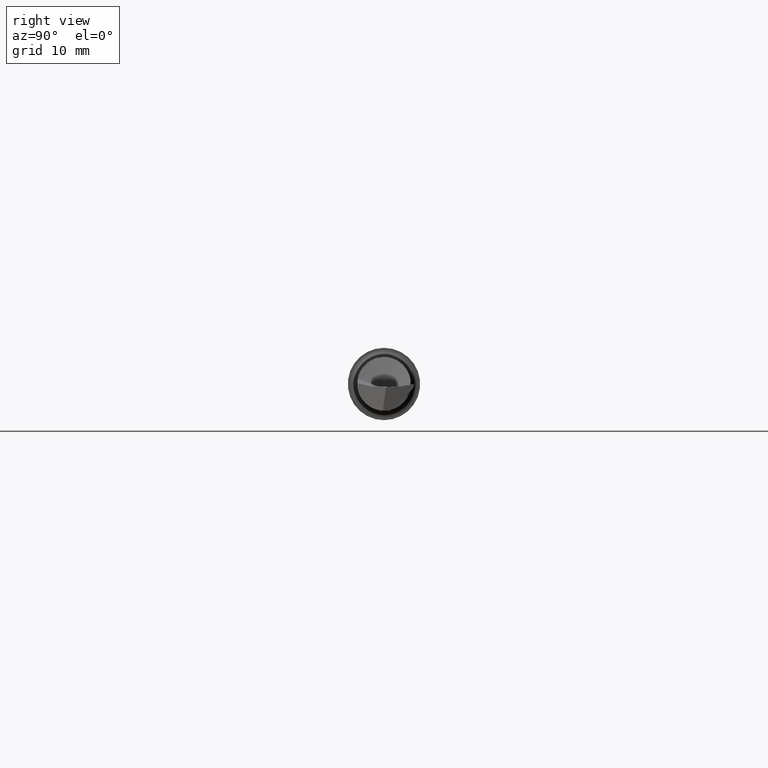
[diagram: clean part render]
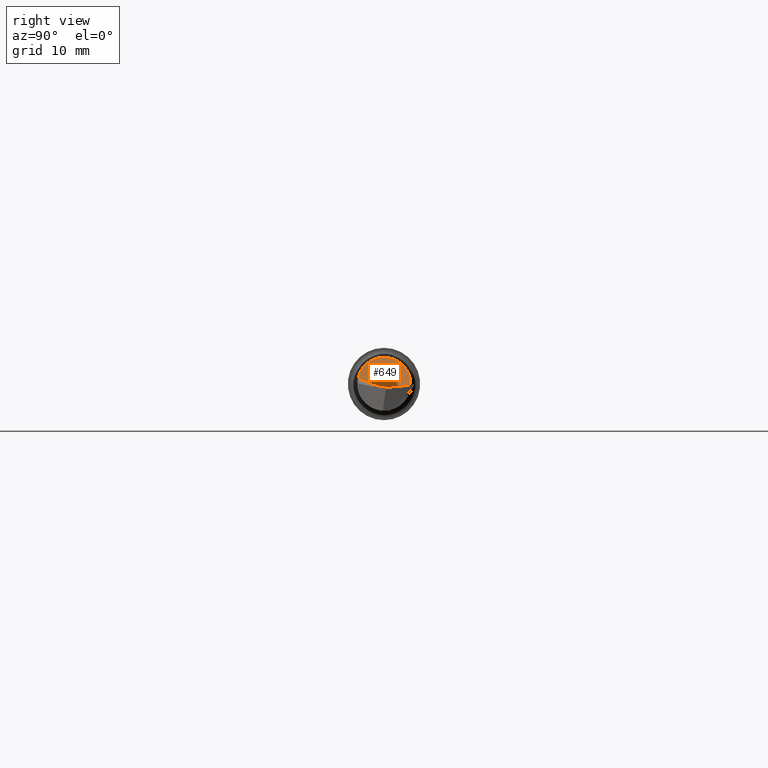
[diagram: same view with one face highlighted and labeled with its STEP entity id]
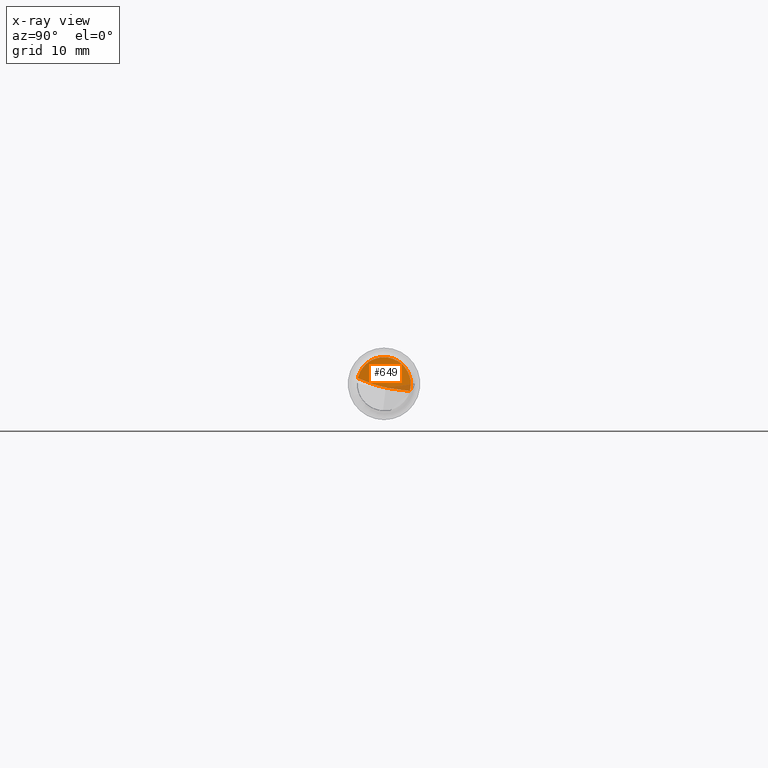
[diagram: x-ray of the same camera — body ghosted, the highlighted face saturated]
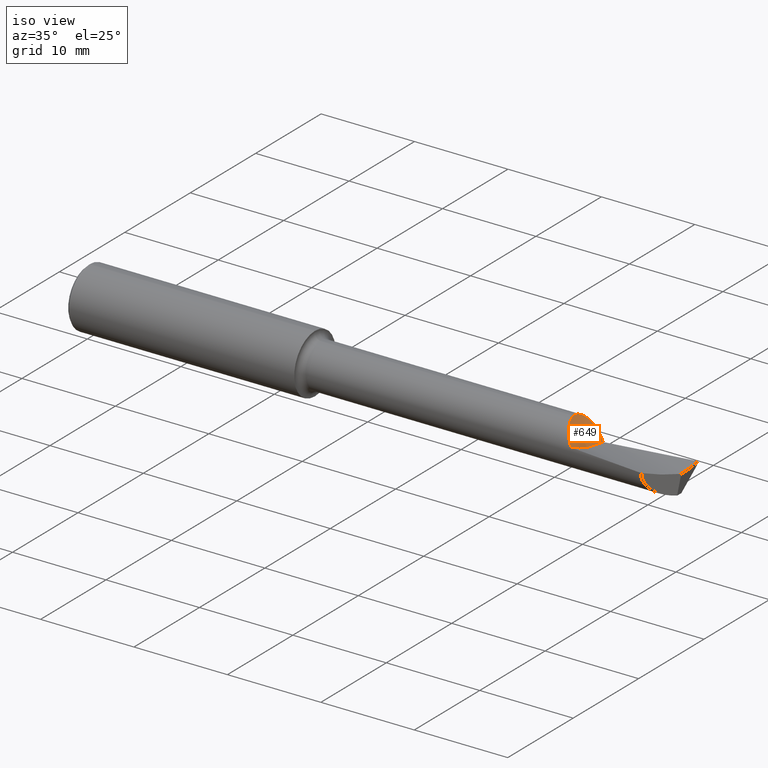
[diagram: same view with one face highlighted and labeled with its STEP entity id]
A machine part, right view. The second image highlights one B-rep face of the part: STEP entity #649.
The next image is the same camera in x-ray: the body ghosted, the highlighted face saturated — about 7% of this face is hidden behind the body in this view.
A second angle (iso view) of the same face is appended — the face is thin or edge-on in the first view.
In plain terms, the highlighted face is a freeform B-spline surface patch.
Its self-contained STEP definition (entity closure, byte-faithful):
#1 = CARTESIAN_POINT ( 'NONE',  ( 2.047827916880122334, 0.0005448074884509098359, 0.09249879614009953732 ) ) ;
#7 = CARTESIAN_POINT ( 'NONE',  ( 2.073468108956049605, 0.08550618690932580701, 0.03552333859736302862 ) ) ;
#14 = CARTESIAN_POINT ( 'NONE',  ( 2.066208213237176849, -0.05356572789672628399, 0.07541362391561999556 ) ) ;
#16 = CARTESIAN_POINT ( 'NONE',  ( 2.076286271816419227, 0.08730198741611246149, 0.03105794626334639624 ) ) ;
#21 = CARTESIAN_POINT ( 'NONE',  ( 2.064632393218944539, -0.05062565620870608518, 0.07748382293347118310 ) ) ;
#25 = CARTESIAN_POINT ( 'NONE',  ( 2.054472730122976376, 0.06293394240340167978, 0.06779179277510309631 ) ) ;
#56 = CARTESIAN_POINT ( 'NONE',  ( 2.099469566383024066, -0.09876474483481932631, 0.02439576420680025434 ) ) ;
#58 = EDGE_CURVE ( 'NONE', #183, #342, #763, .T. ) ;
#76 = CARTESIAN_POINT ( 'NONE',  ( 2.070390417637880009, 0.08316591038031106997, 0.04049630990281855025 ) ) ;
#78 = CARTESIAN_POINT ( 'NONE',  ( 2.092374781392565275, -0.08702720584656421787, 0.03461678013650090063 ) ) ;
#83 = CARTESIAN_POINT ( 'NONE',  ( 2.101985182368761418, -0.06232069977107370512, 0.007196703789060768588 ) ) ;
#95 = CARTESIAN_POINT ( 'NONE',  ( 2.046359999999999957, 0.01283752039381836144, 0.09160484741616187199 ) ) ;
#110 = CARTESIAN_POINT ( 'NONE',  ( 2.103692732370841867, -0.03694737321389097301, -0.006241681281368437889 ) ) ;
#111 = EDGE_CURVE ( 'NONE', #321, #366, #199, .T. ) ;
#117 = FACE_OUTER_BOUND ( 'NONE', #437, .T. ) ;
#126 = CARTESIAN_POINT ( 'NONE',  ( 2.066627336287861105, -0.05433633409741091269, 0.07485885989433642418 ) ) ;
#130 = CARTESIAN_POINT ( 'NONE',  ( 2.056689114071337254, 0.06734694849162307928, 0.06362724162322348775 ) ) ;
#133 = CARTESIAN_POINT ( 'NONE',  ( 2.050684075178326626, 0.05377232911390823766, 0.07533086458502093186 ) ) ;
#147 = CARTESIAN_POINT ( 'NONE',  ( 2.110129382589837288, 0.08982576072408679502, -0.02222601275359146686 ) ) ;
#153 = CARTESIAN_POINT ( 'NONE',  ( 2.083067939091489684, 0.09028758523319836693, 0.02034379597425600358 ) ) ;
#154 = CARTESIAN_POINT ( 'NONE',  ( 2.107791904823271611, 0.02744776930478221716, -0.01842625771583338706 ) ) ;
#166 = CARTESIAN_POINT ( 'NONE',  ( 2.046359999999997292, -0.004657400960956949339, 0.09279469704556622678 ) ) ;
#168 = CARTESIAN_POINT ( 'NONE',  ( 2.047909686212890712, -1.554536630872900275E-06, 0.09251412615423500185 ) ) ;
#171 = CARTESIAN_POINT ( 'NONE',  ( 2.046359999999999957, 0.03186954430192543569, 0.08683652541406530756 ) ) ;
#173 = CARTESIAN_POINT ( 'NONE',  ( 2.059668613704616735, -0.04013664932119041795, 0.08354322363455583822 ) ) ;
#174 = CARTESIAN_POINT ( 'NONE',  ( 2.046359999999999513, 0.05068553317297123939, 0.07904524283450664601 ) ) ;
#176 = CARTESIAN_POINT ( 'NONE',  ( 2.066937143561800028, 0.08018521494668531813, 0.04613968370157726928 ) ) ;
#183 = VERTEX_POINT ( 'NONE', #771 ) ;
#187 = CARTESIAN_POINT ( 'NONE',  ( 2.052825325469445961, 0.05937367452498090031, 0.07096069019223755214 ) ) ;
#192 = CARTESIAN_POINT ( 'NONE',  ( 2.099985204774059699, -0.09024474448373197288, 0.02030113526544596175 ) ) ;
#199 = B_SPLINE_CURVE_WITH_KNOTS ( 'NONE', 3,
 ( #168, #595, #1, #646, #299, #762, #477, #233, #544 ),
 .UNSPECIFIED., .F., .F.,
 ( 4, 2, 1, 1, 1, 4 ),
 ( 0.9130828784941764642, 0.9185151985882901160, 0.9239475186824037678, 0.9348121588706318486, 0.9565414392470881211, 1.000000000000000000 ),
 .UNSPECIFIED. ) ;
#218 = CARTESIAN_POINT ( 'NONE',  ( 2.085945122272987007, 0.09115187329204574307, 0.01580990246085937218 ) ) ;
#233 = CARTESIAN_POINT ( 'NONE',  ( 2.046522920783742983, 0.01074722021861904304, 0.09189779192344127434 ) ) ;
#234 = CARTESIAN_POINT ( 'NONE',  ( 2.108259403541731025, 0.03322201083773395486, -0.02366986548610450214 ) ) ;
#239 = CARTESIAN_POINT ( 'NONE',  ( 2.063224009766619460, -0.04778499748353275817, 0.07925519998079103012 ) ) ;
#244 = CARTESIAN_POINT ( 'NONE',  ( 2.081277077143194543, 0.08959285356399214473, 0.02317037652879311987 ) ) ;
#249 = CARTESIAN_POINT ( 'NONE',  ( 2.046835084042316399, 0.03761252682148737841, 0.08472884904255002791 ) ) ;
#250 = CARTESIAN_POINT ( 'NONE',  ( 2.052056960218470838, -0.01946374552352209131, 0.09108352192149239690 ) ) ;
#252 = EDGE_CURVE ( 'NONE', #342, #321, #597, .T. ) ;
#254 = VERTEX_POINT ( 'NONE', #496 ) ;
#256 = CARTESIAN_POINT ( 'NONE',  ( 2.049452892340594357, -0.009316029406795841780, 0.09249996228234917683 ) ) ;
#259 = CARTESIAN_POINT ( 'NONE',  ( 2.063118217034376922, 0.07621158154040955091, 0.05250172275426923801 ) ) ;
#264 = CARTESIAN_POINT ( 'NONE',  ( 2.107649412634559294, 0.09082427280002687564, -0.01835262024604034786 ) ) ;
#293 = CARTESIAN_POINT ( 'NONE',  ( 2.046359999999999069, 0.02548420369320165274, 0.08827803738801967559 ) ) ;
#299 = CARTESIAN_POINT ( 'NONE',  ( 2.047613336586801225, 0.001904979390057215047, 0.09248317671571612553 ) ) ;
#307 = CARTESIAN_POINT ( 'NONE',  ( 2.047909686212890712, -1.554536630872900275E-06, 0.09251412615423500185 ) ) ;
#315 = CARTESIAN_POINT ( 'NONE',  ( 2.047909686212890712, -1.554536630872900275E-06, 0.09251412615423500185 ) ) ;
#321 = VERTEX_POINT ( 'NONE', #315 ) ;
#323 = CARTESIAN_POINT ( 'NONE',  ( 2.052082497096775704, 0.05752794145831838235, 0.07245187427481500353 ) ) ;
#326 = CARTESIAN_POINT ( 'NONE',  ( 2.099985204774059699, -0.09024474448373197288, 0.02030113526544596175 ) ) ;
#327 = CARTESIAN_POINT ( 'NONE',  ( 2.090581533027239036, 0.09210676330602081407, 0.008522862028076474278 ) ) ;
#332 = EDGE_CURVE ( 'NONE', #254, #183, #498, .T. ) ;
#342 = VERTEX_POINT ( 'NONE', #394 ) ;
#362 = CARTESIAN_POINT ( 'NONE',  ( 2.046359999999999069, 0.01913645612721456488, 0.08986829457070735772 ) ) ;
#366 = VERTEX_POINT ( 'NONE', #95 ) ;
#368 = CARTESIAN_POINT ( 'NONE',  ( 2.066732102188527431, -0.05452740403586507634, 0.07471960758305627726 ) ) ;
#378 = B_SPLINE_CURVE_WITH_KNOTS ( 'NONE', 3,
 ( #171, #293, #362, #537 ),
 .UNSPECIFIED., .F., .F.,
 ( 4, 4 ),
 ( 0.000000000000000000, 1.000000000000000000 ),
 .UNSPECIFIED. ) ;
#379 = CARTESIAN_POINT ( 'NONE',  ( 2.068150813712690717, 0.08131382946355224239, 0.04414186749009448019 ) ) ;
#380 = CARTESIAN_POINT ( 'NONE',  ( 2.085890238348702574, -0.08094550312319337415, 0.04598559725705914092 ) ) ;
#383 = CARTESIAN_POINT ( 'NONE',  ( 2.071197751350748018, -0.06224497473912510986, 0.06871714438118392554 ) ) ;
#387 = CARTESIAN_POINT ( 'NONE',  ( 2.103920395128665799, -0.03289320846274075560, -0.003308102619573082773 ) ) ;
#394 = CARTESIAN_POINT ( 'NONE',  ( 2.099985204774059699, -0.09024474448373197288, 0.02030113526544596175 ) ) ;
#404 = CARTESIAN_POINT ( 'NONE',  ( 2.086935998376662216, 0.09141023289801472607, 0.01424971767703395870 ) ) ;
#425 = CARTESIAN_POINT ( 'NONE',  ( 2.112521805327296498, 0.1031277890515530093, -0.02518047411719523052 ) ) ;
#428 = CARTESIAN_POINT ( 'NONE',  ( 2.046359999999999513, 0.1059440200732878062, 0.07762243902522676653 ) ) ;
#432 = CARTESIAN_POINT ( 'NONE',  ( 2.059019005238191813, 0.07106157771718758787, 0.05949828892136887343 ) ) ;
#437 = EDGE_LOOP ( 'NONE', ( #583, #618, #629, #744, #535 ) ) ;
#443 = CARTESIAN_POINT ( 'NONE',  ( 2.067919854101653687, -0.05664095340334787676, 0.07313467737845072425 ) ) ;
#459 = CARTESIAN_POINT ( 'NONE',  ( 2.089248984098266870, 0.09189570065554275580, 0.01061359712825269905 ) ) ;
#461 = CARTESIAN_POINT ( 'NONE',  ( 2.096433888643092214, 0.09287403088557119601, -0.0006477885304175681020 ) ) ;
#463 = CARTESIAN_POINT ( 'NONE',  ( 2.111665809954994089, 0.08915496014083668097, -0.02465041748704996025 ) ) ;
#477 = CARTESIAN_POINT ( 'NONE',  ( 2.046834931757196774, 0.007569663407491452820, 0.09223360116256829055 ) ) ;
#495 = CARTESIAN_POINT ( 'NONE',  ( 2.049868107001878936, 0.05118305480786037448, 0.07711223675426005786 ) ) ;
#496 = CARTESIAN_POINT ( 'NONE',  ( 2.046359999999999957, 0.03186954430192543569, 0.08683652541406530756 ) ) ;
#498 = B_SPLINE_CURVE_WITH_KNOTS ( 'NONE', 3,
 ( #562, #249, #679, #495, #133, #323, #187, #730, #568, #25, #675, #130, #432, #259, #504, #176, #379, #617, #76, #558, #667, #551, #7, #16, #244, #153, #218, #404, #526, #459, #515, #327, #642, #586, #461, #748, #264, #147, #580 ),
 .UNSPECIFIED., .F., .F.,
 ( 4, 2, 2, 1, 1, 2, 2, 2, 2, 1, 1, 1, 2, 2, 2, 2, 2, 1, 1, 2, 2, 2, 4 ),
 ( 0.000000000000000000, 0.1249999999999653888, 0.1874999999999475142, 0.2187499999999386324, 0.2343749999999341360, 0.2421874999999318878, 0.2499999999999296396, 0.3749999999998804290, 0.4374999999998557820, 0.4687499999998435141, 0.4843749999998374078, 0.4921874999998332445, 0.4960937499998323008, 0.4999999999998314126, 0.6249999999998410161, 0.6874999999998472333, 0.7187499999998503419, 0.7343749999998518962, 0.7421874999998526734, 0.7460937499998541167, 0.7499999999998555600, 0.8749999999999278355, 1.000000000000000000 ),
 .UNSPECIFIED. ) ;
#504 = CARTESIAN_POINT ( 'NONE',  ( 2.064585350140756059, 0.07785742368321742213, 0.05003626694631448796 ) ) ;
#515 = CARTESIAN_POINT ( 'NONE',  ( 2.090178636555234171, 0.09204756222701837576, 0.009154675718668237039 ) ) ;
#526 = CARTESIAN_POINT ( 'NONE',  ( 2.088470035096937849, 0.09174301055325211063, 0.01183760101169105926 ) ) ;
#535 = ORIENTED_EDGE ( 'NONE', *, *, #111, .F. ) ;
#537 = CARTESIAN_POINT ( 'NONE',  ( 2.046359999999999957, 0.01283752039381836144, 0.09160484741616187199 ) ) ;
#544 = CARTESIAN_POINT ( 'NONE',  ( 2.046359999999999957, 0.01283752039381836144, 0.09160484741616187199 ) ) ;
#551 = CARTESIAN_POINT ( 'NONE',  ( 2.071086826718692375, 0.08370366893413648535, 0.03936956152814576754 ) ) ;
#556 = CARTESIAN_POINT ( 'NONE',  ( 2.057565407188880702, -0.03494212542111562597, 0.08581955901723035962 ) ) ;
#558 = CARTESIAN_POINT ( 'NONE',  ( 2.070718623995844165, 0.08342116242586343489, 0.03996496425778538891 ) ) ;
#562 = CARTESIAN_POINT ( 'NONE',  ( 2.046359999999999957, 0.03186954430192543569, 0.08683652541406530756 ) ) ;
#568 = CARTESIAN_POINT ( 'NONE',  ( 2.054188772820882747, 0.06234848831482234927, 0.06833062475167092642 ) ) ;
#580 = CARTESIAN_POINT ( 'NONE',  ( 2.111665809954994089, 0.08915496014083668097, -0.02465041748704996025 ) ) ;
#583 = ORIENTED_EDGE ( 'NONE', *, *, #252, .F. ) ;
#586 = CARTESIAN_POINT ( 'NONE',  ( 2.090956218076420292, 0.09215935361655598623, 0.007935468564174451289 ) ) ;
#595 = CARTESIAN_POINT ( 'NONE',  ( 2.047880505145097452, 0.0002213167310058151180, 0.09250000089681748028 ) ) ;
#597 = B_SPLINE_CURVE_WITH_KNOTS ( 'NONE', 3,
 ( #192, #78, #380, #673, #383, #443, #680, #614, #368, #126, #718, #14, #21, #239, #173, #556, #250, #256, #307 ),
 .UNSPECIFIED., .F., .F.,
 ( 4, 2, 2, 1, 2, 2, 1, 1, 2, 2, 4 ),
 ( 0.000000000000000000, 0.2282707196234658453, 0.4565414392469316907, 0.4850752791998617641, 0.4993421991763267731, 0.5029089291704452735, 0.5064756591645637185, 0.5136091191528026068, 0.5706767990587137129, 0.6848121588705340379, 0.9130828784941764642 ),
 .UNSPECIFIED. ) ;
#598 = EDGE_CURVE ( 'NONE', #254, #366, #378, .T. ) ;
#603 = CARTESIAN_POINT ( 'NONE',  ( 2.046359999999999957, -0.05362023393611898420, 0.1168180843722870094 ) ) ;
#614 = CARTESIAN_POINT ( 'NONE',  ( 2.066924862295450360, -0.05487806547671787716, 0.07446320367560997633 ) ) ;
#617 = CARTESIAN_POINT ( 'NONE',  ( 2.069632865742709438, 0.08256084544845203321, 0.04172559821949120562 ) ) ;
#618 = ORIENTED_EDGE ( 'NONE', *, *, #58, .F. ) ;
#629 = ORIENTED_EDGE ( 'NONE', *, *, #332, .F. ) ;
#642 = CARTESIAN_POINT ( 'NONE',  ( 2.090851124895340973, 0.09214489540535990286, 0.008100202133049067346 ) ) ;
#646 = CARTESIAN_POINT ( 'NONE',  ( 2.047741136250033733, 0.001089221985225309781, 0.09249398736152562861 ) ) ;
#649 = ADVANCED_FACE ( 'NONE', ( #117 ), #705, .T. ) ;
#667 = CARTESIAN_POINT ( 'NONE',  ( 2.070938215181162168, 0.08359041568984150461, 0.03960973508378786562 ) ) ;
#673 = CARTESIAN_POINT ( 'NONE',  ( 2.075301723327794168, -0.06855649903352785401, 0.06298298239382797703 ) ) ;
#675 = CARTESIAN_POINT ( 'NONE',  ( 2.054641703697401400, 0.06327518632099957130, 0.06747302676158670187 ) ) ;
#679 = CARTESIAN_POINT ( 'NONE',  ( 2.047769141780094948, 0.04320709663551680624, 0.08202685796229856885 ) ) ;
#680 = CARTESIAN_POINT ( 'NONE',  ( 2.067401435210660221, -0.05573592228519051034, 0.07382865587468590007 ) ) ;
#699 = CARTESIAN_POINT ( 'NONE',  ( 2.109728201757892663, 0.05835192853738419699, -0.02303726912454244491 ) ) ;
#705 = B_SPLINE_SURFACE_WITH_KNOTS ( 'NONE', 1, 3, ( 
 ( #603, #166, #174, #428 ),
 ( #56, #110, #234, #425 ) ),
 .UNSPECIFIED., .F., .F., .F.,
 ( 2, 2 ),
 ( 4, 4 ),
 ( 0.000000000000000000, 1.000000000000000000 ),
 ( 0.01153228999222987577, 0.01577103337950940334 ),
 .UNSPECIFIED. ) ;
#718 = CARTESIAN_POINT ( 'NONE',  ( 2.066459374109549163, -0.05402831517415587065, 0.07508147086510376378 ) ) ;
#730 = CARTESIAN_POINT ( 'NONE',  ( 2.053768289044421991, 0.06146564332930339741, 0.06913270069952680286 ) ) ;
#744 = ORIENTED_EDGE ( 'NONE', *, *, #598, .T. ) ;
#748 = CARTESIAN_POINT ( 'NONE',  ( 2.100801665661184980, 0.09234974699426072575, -0.007575713144324884921 ) ) ;
#762 = CARTESIAN_POINT ( 'NONE',  ( 2.047331736345879616, 0.003802142883494294759, 0.09243292659895571695 ) ) ;
#763 = B_SPLINE_CURVE_WITH_KNOTS ( 'NONE', 3,
 ( #463, #699, #154, #387, #83, #326 ),
 .UNSPECIFIED., .F., .F.,
 ( 4, 2, 4 ),
 ( 0.000000000000000000, 0.5000000000000000000, 1.000000000000000000 ),
 .UNSPECIFIED. ) ;
#771 = CARTESIAN_POINT ( 'NONE',  ( 2.111665809954994089, 0.08915496014083668097, -0.02465041748704996025 ) ) ;